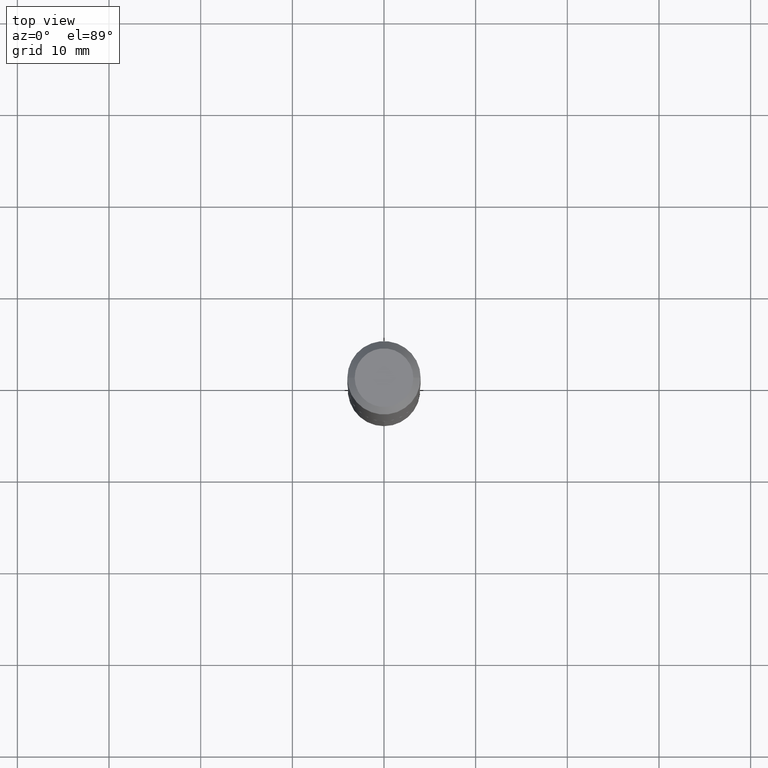
[diagram: clean part render]
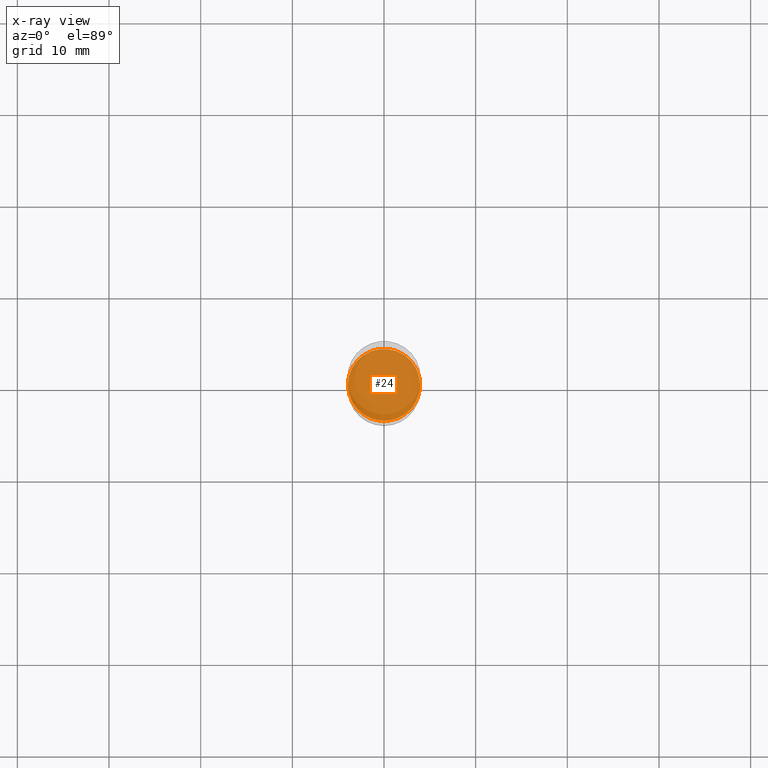
[diagram: x-ray — body ghosted, one internal face saturated and labeled with its STEP entity id]
A machine part, top view, then the same camera in x-ray: the body is ghosted and one INTERNAL B-rep face — a face not visible from any outside direction — is saturated and labeled: STEP entity #24.
In plain terms, the highlighted planar face has unit normal (-0, 0, 1).
Its self-contained STEP definition (entity closure, byte-faithful):
#16 = CARTESIAN_POINT ( 'NONE',  ( 4.418962132776542068E-29, -6.309106779289563966E-15, -1.807000000000000162 ) ) ;
#24 = ADVANCED_FACE ( 'NONE', ( #98 ), #31, .F. ) ;
#31 = PLANE ( 'NONE',  #373 ) ;
#37 = DIRECTION ( 'NONE',  ( -2.438088387897960049E-29, 3.491481338843145188E-15, 1.000000000000000000 ) ) ;
#57 = CARTESIAN_POINT ( 'NONE',  ( 4.418962132776542068E-29, -6.309106779289563966E-15, -1.807000000000000162 ) ) ;
#84 = CIRCLE ( 'NONE', #106, 0.1549999999999999989 ) ;
#91 = CIRCLE ( 'NONE', #126, 0.1549999999999999989 ) ;
#98 = FACE_OUTER_BOUND ( 'NONE', #411, .T. ) ;
#99 = DIRECTION ( 'NONE',  ( -2.445468806185136597E-29, 3.491481338843145583E-15, 1.000000000000000000 ) ) ;
#106 = AXIS2_PLACEMENT_3D ( 'NONE', #16, #99, #399 ) ;
#118 = ORIENTED_EDGE ( 'NONE', *, *, #405, .F. ) ;
#126 = AXIS2_PLACEMENT_3D ( 'NONE', #57, #168, #362 ) ;
#168 = DIRECTION ( 'NONE',  ( -2.445468806185136597E-29, 3.491481338843145583E-15, 1.000000000000000000 ) ) ;
#172 = DIRECTION ( 'NONE',  ( 1.000000000000000000, -6.982962677686265922E-15, 4.876176775795935793E-29 ) ) ;
#243 = CARTESIAN_POINT ( 'NONE',  ( -0.1549999999999999989, -5.205116311687297288E-15, -1.807000000000000162 ) ) ;
#315 = ORIENTED_EDGE ( 'NONE', *, *, #462, .F. ) ;
#359 = VERTEX_POINT ( 'NONE', #243 ) ;
#362 = DIRECTION ( 'NONE',  ( 1.000000000000000000, -6.982962677686263555E-15, 0.000000000000000000 ) ) ;
#372 = CARTESIAN_POINT ( 'NONE',  ( 2.195023978348705246E-29, -9.493912795129127825E-15, -1.807000000000000162 ) ) ;
#373 = AXIS2_PLACEMENT_3D ( 'NONE', #372, #37, #172 ) ;
#399 = DIRECTION ( 'NONE',  ( 1.000000000000000000, -6.982962677686263555E-15, 0.000000000000000000 ) ) ;
#405 = EDGE_CURVE ( 'NONE', #359, #424, #84, .T. ) ;
#411 = EDGE_LOOP ( 'NONE', ( #315, #118 ) ) ;
#424 = VERTEX_POINT ( 'NONE', #468 ) ;
#462 = EDGE_CURVE ( 'NONE', #424, #359, #91, .T. ) ;
#468 = CARTESIAN_POINT ( 'NONE',  ( 0.1549999999999999989, -7.391465994330934833E-15, -1.807000000000000162 ) ) ;